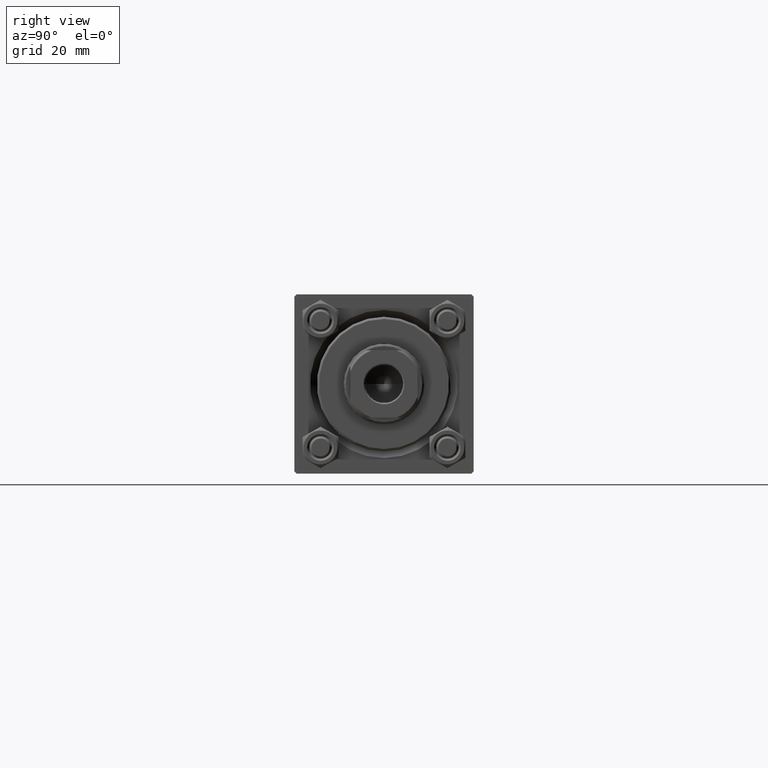
[diagram: clean part render]
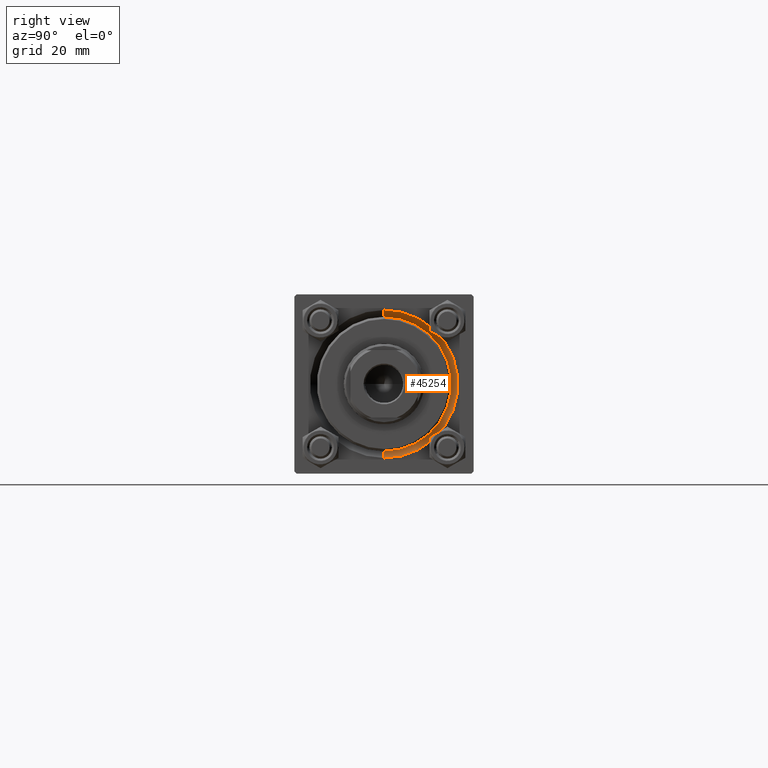
[diagram: same view with one face highlighted and labeled with its STEP entity id]
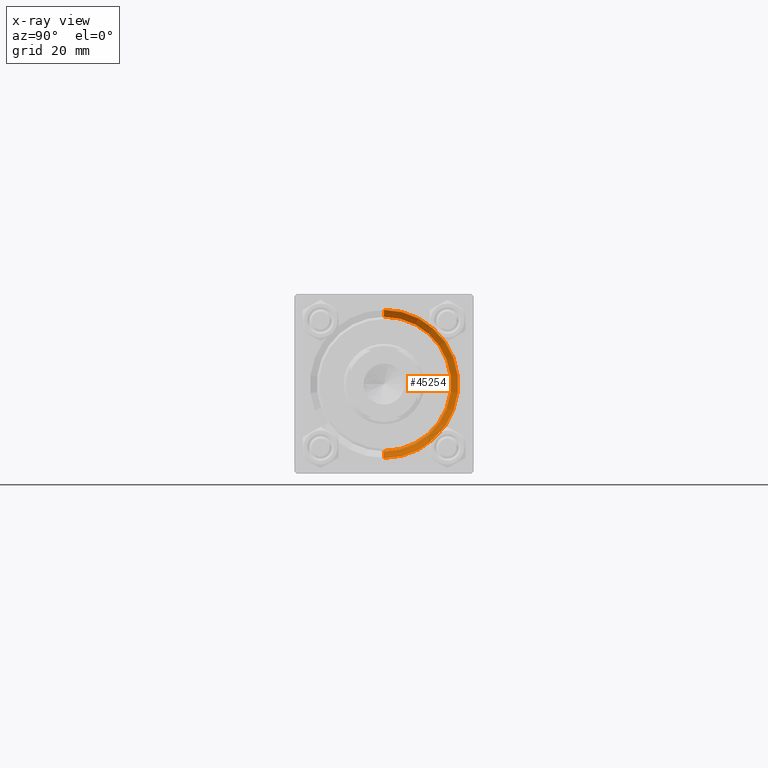
[diagram: x-ray of the same camera — body ghosted, the highlighted face saturated]
A machine part, right view. The second image highlights one B-rep face of the part: STEP entity #45254.
The next image is the same camera in x-ray: the body ghosted, the highlighted face saturated — about 0% of this face is hidden behind the body in this view.
In plain terms, the highlighted conical surface has half-angle 45 deg.
Its self-contained STEP definition (entity closure, byte-faithful):
#3621 = DIRECTION ( 'NONE',  ( 0.000000000000000000, 0.000000000000000000, 1.000000000000000000 ) ) ;
#5667 = ORIENTED_EDGE ( 'NONE', *, *, #26483, .T. ) ;
#5737 = DIRECTION ( 'NONE',  ( 0.000000000000000000, 0.000000000000000000, 1.000000000000000000 ) ) ;
#7701 = CONICAL_SURFACE ( 'NONE', #9306, 15.00000000000000000, 0.7853981633974482790 ) ;
#7865 = DIRECTION ( 'NONE',  ( 0.000000000000000000, 0.000000000000000000, -1.000000000000000000 ) ) ;
#9306 = AXIS2_PLACEMENT_3D ( 'NONE', #26992, #42075, #7865 ) ;
#11791 = CARTESIAN_POINT ( 'NONE',  ( 117.5000000000000000, 1.836970198721029589E-15, 15.00000000000000000 ) ) ;
#12437 = CARTESIAN_POINT ( 'NONE',  ( 117.5000000000000000, 0.000000000000000000, -15.00000000000000000 ) ) ;
#12966 = VERTEX_POINT ( 'NONE', #33300 ) ;
#14348 = VERTEX_POINT ( 'NONE', #16261 ) ;
#16261 = CARTESIAN_POINT ( 'NONE',  ( 119.0000000000000142, 2.020667218593134678E-15, 16.50000000000001421 ) ) ;
#16801 = DIRECTION ( 'NONE',  ( 0.7071067811865474617, 8.659560562354932858E-17, 0.7071067811865474617 ) ) ;
#17057 = CARTESIAN_POINT ( 'NONE',  ( 119.0000000000000142, 0.000000000000000000, 0.000000000000000000 ) ) ;
#17251 = ORIENTED_EDGE ( 'NONE', *, *, #47398, .F. ) ;
#17483 = LINE ( 'NONE', #12437, #37785 ) ;
#19040 = VECTOR ( 'NONE', #16801, 1000.000000000000114 ) ;
#19413 = CIRCLE ( 'NONE', #41923, 16.50000000000001421 ) ;
#22512 = CARTESIAN_POINT ( 'NONE',  ( 117.5000000000000000, 0.000000000000000000, 0.000000000000000000 ) ) ;
#26271 = FACE_OUTER_BOUND ( 'NONE', #30252, .T. ) ;
#26483 = EDGE_CURVE ( 'NONE', #33759, #12966, #17483, .T. ) ;
#26992 = CARTESIAN_POINT ( 'NONE',  ( 117.5000000000000000, 0.000000000000000000, 0.000000000000000000 ) ) ;
#30252 = EDGE_LOOP ( 'NONE', ( #17251, #49063, #5667, #38992 ) ) ;
#31895 = CARTESIAN_POINT ( 'NONE',  ( 117.5000000000000000, 1.836970198721029589E-15, 15.00000000000000000 ) ) ;
#33300 = CARTESIAN_POINT ( 'NONE',  ( 119.0000000000000142, 0.000000000000000000, -16.50000000000001421 ) ) ;
#33759 = VERTEX_POINT ( 'NONE', #40437 ) ;
#34439 = EDGE_CURVE ( 'NONE', #14348, #12966, #19413, .T. ) ;
#35660 = DIRECTION ( 'NONE',  ( -1.000000000000000000, -0.000000000000000000, -0.000000000000000000 ) ) ;
#37491 = EDGE_CURVE ( 'NONE', #33759, #48321, #44388, .T. ) ;
#37785 = VECTOR ( 'NONE', #43129, 1000.000000000000114 ) ;
#38083 = DIRECTION ( 'NONE',  ( 1.000000000000000000, 0.000000000000000000, 0.000000000000000000 ) ) ;
#38992 = ORIENTED_EDGE ( 'NONE', *, *, #34439, .F. ) ;
#40437 = CARTESIAN_POINT ( 'NONE',  ( 117.5000000000000000, 0.000000000000000000, -15.00000000000000000 ) ) ;
#41204 = AXIS2_PLACEMENT_3D ( 'NONE', #22512, #38083, #3621 ) ;
#41923 = AXIS2_PLACEMENT_3D ( 'NONE', #17057, #35660, #5737 ) ;
#42075 = DIRECTION ( 'NONE',  ( 1.000000000000000000, 0.000000000000000000, 0.000000000000000000 ) ) ;
#42956 = LINE ( 'NONE', #31895, #19040 ) ;
#43129 = DIRECTION ( 'NONE',  ( 0.7071067811865474617, 0.000000000000000000, -0.7071067811865474617 ) ) ;
#44388 = CIRCLE ( 'NONE', #41204, 15.00000000000000000 ) ;
#45254 = ADVANCED_FACE ( 'NONE', ( #26271 ), #7701, .F. ) ;
#47398 = EDGE_CURVE ( 'NONE', #48321, #14348, #42956, .T. ) ;
#48321 = VERTEX_POINT ( 'NONE', #11791 ) ;
#49063 = ORIENTED_EDGE ( 'NONE', *, *, #37491, .F. ) ;